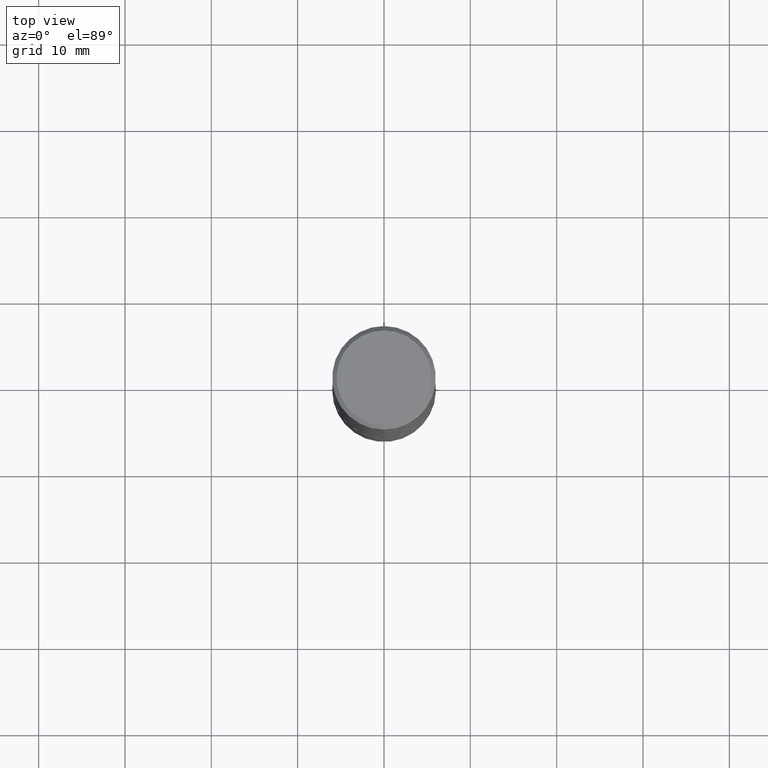
[diagram: clean part render]
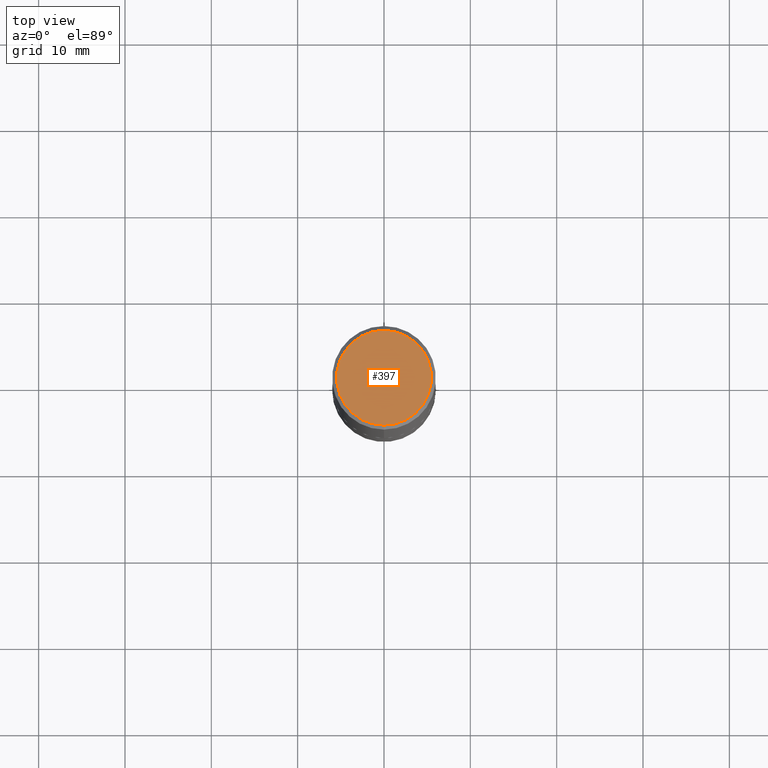
[diagram: same view with one face highlighted and labeled with its STEP entity id]
A machine part, top view. The second image highlights one B-rep face of the part: STEP entity #397.
In plain terms, the highlighted planar face has unit normal (0, -0, -1).
Its self-contained STEP definition (entity closure, byte-faithful):
#53 = CARTESIAN_POINT ( 'NONE',  ( 1.509716530915772690E-15, 0.2162000000000002808, -9.024733938762408486E-16 ) ) ;
#99 = FACE_OUTER_BOUND ( 'NONE', #324, .T. ) ;
#113 = CIRCLE ( 'NONE', #226, 0.2162000000000002808 ) ;
#114 = DIRECTION ( 'NONE',  ( -2.443198551934710321E-29, 3.494732472144603410E-15, 1.000000000000000000 ) ) ;
#119 = AXIS2_PLACEMENT_3D ( 'NONE', #53, #322, #229 ) ;
#139 = EDGE_CURVE ( 'NONE', #163, #194, #401, .T. ) ;
#163 = VERTEX_POINT ( 'NONE', #399 ) ;
#185 = EDGE_CURVE ( 'NONE', #194, #163, #113, .T. ) ;
#194 = VERTEX_POINT ( 'NONE', #336 ) ;
#207 = DIRECTION ( 'NONE',  ( -6.982962677686265922E-15, -1.000000000000000000, 3.494732472144603410E-15 ) ) ;
#222 = PLANE ( 'NONE',  #119 ) ;
#226 = AXIS2_PLACEMENT_3D ( 'NONE', #366, #114, #405 ) ;
#229 = DIRECTION ( 'NONE',  ( 6.982962677686265922E-15, 1.000000000000000000, -3.494732472144603016E-15 ) ) ;
#233 = CARTESIAN_POINT ( 'NONE',  ( 7.178715118017931868E-45, -1.026837905226585320E-30, -2.938244667971532280E-16 ) ) ;
#239 = AXIS2_PLACEMENT_3D ( 'NONE', #233, #363, #207 ) ;
#322 = DIRECTION ( 'NONE',  ( 2.443198551934710321E-29, -3.494732472144603016E-15, -1.000000000000000000 ) ) ;
#324 = EDGE_LOOP ( 'NONE', ( #355, #339 ) ) ;
#336 = CARTESIAN_POINT ( 'NONE',  ( -1.551844647095920733E-15, -0.2162000000000002808, 4.617366936805109079E-16 ) ) ;
#339 = ORIENTED_EDGE ( 'NONE', *, *, #185, .T. ) ;
#355 = ORIENTED_EDGE ( 'NONE', *, *, #139, .T. ) ;
#363 = DIRECTION ( 'NONE',  ( -2.443198551934710321E-29, 3.494732472144603410E-15, 1.000000000000000000 ) ) ;
#366 = CARTESIAN_POINT ( 'NONE',  ( 7.178715118017931868E-45, -1.026837905226585320E-30, -2.938244667971532280E-16 ) ) ;
#397 = ADVANCED_FACE ( 'NONE', ( #99 ), #222, .F. ) ;
#399 = CARTESIAN_POINT ( 'NONE',  ( 1.579546157692634608E-15, 0.2162000000000002808, -1.049385627274817561E-15 ) ) ;
#401 = CIRCLE ( 'NONE', #239, 0.2162000000000002808 ) ;
#405 = DIRECTION ( 'NONE',  ( -6.982962677686265922E-15, -1.000000000000000000, 3.494732472144603410E-15 ) ) ;